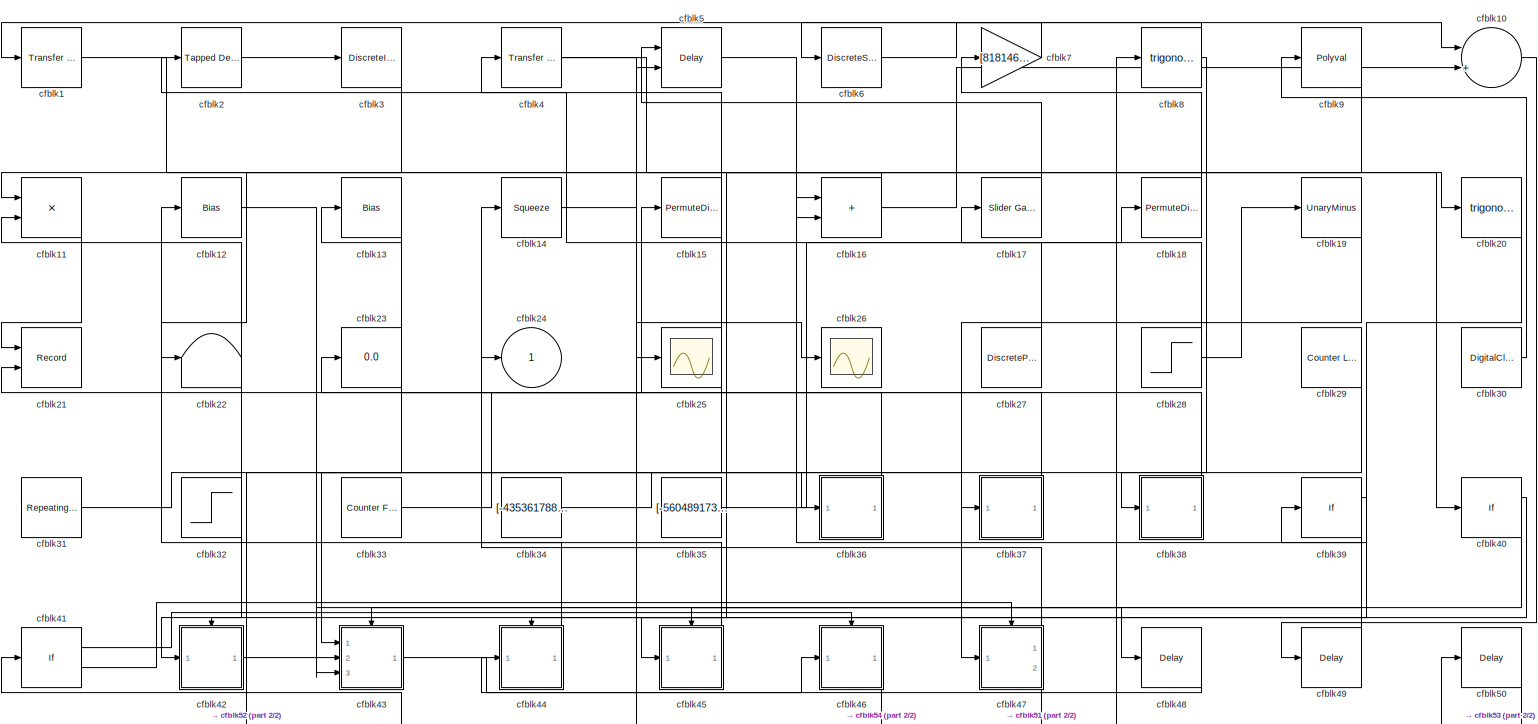
[diagram: root canvas - part 1/2, most of the canvas]
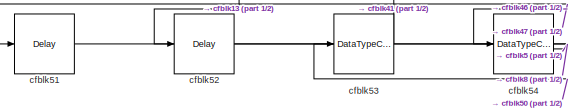
[diagram: root canvas - part 2/2, bottom left region]
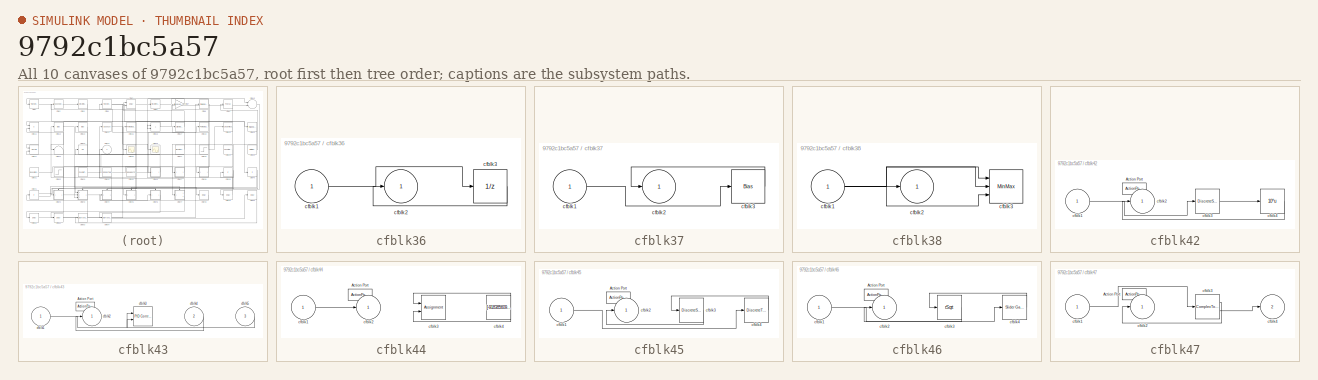
[diagram: thumbnail index - all 10 canvases of the model, root first then tree order]
MODEL slx_9792c1bc5a57
KIND model
CONFIG AbsTol = auto
CONFIG EnableMultiTasking = off
CONFIG FixedStep = auto
CONFIG MaxStep = auto
CONFIG MinStep = auto
CONFIG RelTol = 1e-3
CONFIG SampleTimeConstraint = Unconstrained
CONFIG SolverName = VariableStepAuto
CONFIG StartTime = 0.0
CONFIG StopTime = 10.0
BLOCK [Reference] cfblk1  REF=simulink/Discrete/Transfer Fcn
Lead or Lag
  Ports = [1, 1]
  SourceBlock = simulink/Discrete/Transfer Fcn\nLead or Lag
  SourceProductBaseCode = SL
  SourceType = Lead or Lag Compensator
BLOCK [Sum] cfblk10
  Inputs = |++
  Ports = [2, 1]
BLOCK [Product] cfblk11
  Inputs = **
  Ports = [2, 1]
BLOCK [Bias] cfblk12
  Bias = [-886633856.503143]
  SaturateOnIntegerOverflow = off
BLOCK [Bias] cfblk13
  Bias = [113472994.476104]
  SaturateOnIntegerOverflow = off
BLOCK [Squeeze] cfblk14
BLOCK [PermuteDimensions] cfblk15
BLOCK [Sum] cfblk16
  IconShape = rectangular
  Ports = [2, 1]
BLOCK [Reference] cfblk17  REF=simulink/Math
Operations/Slider
Gain
  Ports = [1, 1]
  SourceBlock = simulink/Math\nOperations/Slider\nGain
  SourceProductBaseCode = SL
  SourceType = Slider Gain
BLOCK [PermuteDimensions] cfblk18
BLOCK [UnaryMinus] cfblk19
BLOCK [Reference] cfblk2  REF=simulink/Discrete/Tapped Delay
  Ports = [1, 1]
  SourceBlock = simulink/Discrete/Tapped Delay
  SourceProductBaseCode = SL
  SourceType = Tapped Delay Line
BLOCK [Trigonometry] cfblk20
  Ports = [1, 1]
BLOCK [Record] cfblk21
  CompatibilityTag = XY
  FileSettingsInternal = {"entries":[{"content":{"excelSettings":{"content":{},"type":"Streamout.ExcelSettings"}},"type":"Streamout.FileSettingStorage","uuid":"81ea7c7e-9fea-4c93-8eb7-3e8b3ac382b8"}],"packageUris":["http://schema.mathworks.com/mf0/streamout_blocks/R2020a"],"version":"1.0"}
  Layout = [1 1]
  Ports = [2]
  SignalsInternal = {"entries":[{"content":{"signals":[{"content":{"blockPath":["sampleModel25/cfblk21"],"channel":[],"dimensions":[1],"domain":"sampleModel25/cfblk21","lineColor":"#a2142f","plots":[1],"port":1,"sid":[""],"signalID":958,"signalName":"cfblk11"},"type":"RecordBlkView.Signal","uuid":"227c1af8-843d-4dbb-83c8-0e7a03416cd8"},{"content":{"blockPath":["sampleModel25/cfblk21"],"channel":[],"dimensions":[1],"d...<+377ch>
  VisualizationBindings = {"xyplotplugin":{"info":[{"series":[{"bindingParametersList":[{"parameter":"X-Axis","signalID":958,"signalName":"cfblk11"},{"parameter":"Y-Axis","signalID":962,"signalName":"cfblk36"}],"seriesID":47306}],"subplotID":1}]}}
BLOCK [Terminator] cfblk22
BLOCK [Display] cfblk23
  Decimation = 1
  Ports = [1]
BLOCK [Outport] cfblk24
BLOCK [Scope] cfblk25
  Floating = off
  NumInputPorts = 1
  Ports = [1]
BLOCK [Scope] cfblk26
  Floating = off
  NumInputPorts = 1
  Ports = [1]
BLOCK [DiscretePulseGenerator] cfblk27
  Amplitude = [-185017419.395854]
  Period = [23344587.836266]
  PhaseDelay = [5.000000]
  Ports = [0, 1]
  PulseType = Time based
  PulseWidth = 5
BLOCK [Step] cfblk28
  After = [174121089.074614]
  Before = [417268794.168945]
  SampleTime = 0
  Time = [16.000000]
BLOCK [Reference] cfblk29  REF=simulink/Sources/Counter
Limited
  Ports = [0, 1]
  SourceBlock = simulink/Sources/Counter\nLimited
  SourceProductBaseCode = SL
  SourceType = Counter Limited
BLOCK [DiscreteIntegrator] cfblk3
  ICPrevOutput = DiscIntNeverNeededParam
  ICPrevScaledInput = DiscIntNeverNeededParam
  InitialConditionSetting = Auto
  Ports = [1, 1]
BLOCK [DigitalClock] cfblk30
BLOCK [Reference] cfblk31  REF=simulink/Sources/Repeating
Sequence
Interpolated
  Ports = [0, 1]
  SourceBlock = simulink/Sources/Repeating\nSequence\nInterpolated
  SourceProductBaseCode = SL
  SourceType = Repeating Sequence Interpolated
BLOCK [Step] cfblk32
  After = [-824289697.887476]
  Before = [-371638337.003964]
  SampleTime = 0
  Time = [7.000000]
BLOCK [Reference] cfblk33  REF=simulink/Sources/Counter
Free-Running
  Ports = [0, 1]
  SourceBlock = simulink/Sources/Counter\nFree-Running
  SourceProductBaseCode = SL
  SourceType = Counter Free-Running
BLOCK [Constant] cfblk34
  SampleTime = 1
  Value = [-435361788.770145]
BLOCK [Constant] cfblk35
  SampleTime = 1
  Value = [-560489173.643593]
BLOCK [SubSystem] cfblk36
  Ports = [1, 1]
  RequestExecContextInheritance = off
BLOCK [Inport] cfblk36/cfblk1
BLOCK [Outport] cfblk36/cfblk2
BLOCK [UnitDelay] cfblk36/cfblk3
  HasFrameUpgradeWarning = on
BLOCK [SubSystem] cfblk37
  Ports = [1, 1]
  RequestExecContextInheritance = off
BLOCK [Inport] cfblk37/cfblk1
BLOCK [Outport] cfblk37/cfblk2
BLOCK [Bias] cfblk37/cfblk3
  Bias = [-343520004.929009]
  SaturateOnIntegerOverflow = off
BLOCK [SubSystem] cfblk38
  Ports = [1, 1]
  RequestExecContextInheritance = off
BLOCK [Inport] cfblk38/cfblk1
BLOCK [Outport] cfblk38/cfblk2
BLOCK [MinMax] cfblk38/cfblk3
  Inputs = 3
  Ports = [3, 1]
BLOCK [If] cfblk39
  IfExpression = u1 >= 0
  Ports = [1, 2]
  SampleTime = 1
BLOCK [Reference] cfblk4  REF=simulink/Discrete/Transfer Fcn
Real Zero
  Ports = [1, 1]
  SourceBlock = simulink/Discrete/Transfer Fcn\nReal Zero
  SourceProductBaseCode = SL
  SourceType = Transfer Fcn Real Zero
BLOCK [If] cfblk40
  IfExpression = u1 >= 0
  Ports = [1, 2]
  SampleTime = 1
BLOCK [If] cfblk41
  IfExpression = u1 >= 0
  Ports = [1, 2]
  SampleTime = 1
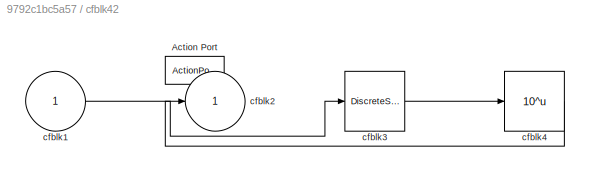
BLOCK [SubSystem] cfblk42
  Ports = [1, 1, 0, 0, 0, 0, 0, 1]
  RequestExecContextInheritance = off
  TreatAsAtomicUnit = on
BLOCK [ActionPort] cfblk42/Action Port
  ActionPortLabel = if(u1 >= 0)
BLOCK [Inport] cfblk42/cfblk1
BLOCK [Outport] cfblk42/cfblk2
BLOCK [DiscreteStateSpace] cfblk42/cfblk3
  SampleTime = -1
BLOCK [Math] cfblk42/cfblk4
  Operator = 10^u
  Ports = [1, 1]
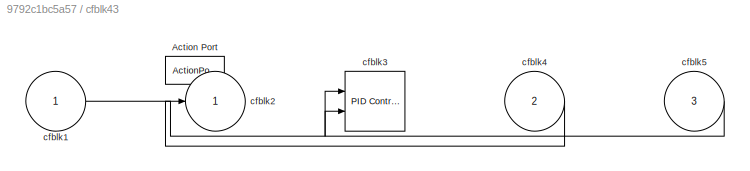
BLOCK [SubSystem] cfblk43
  Ports = [3, 1, 0, 0, 0, 0, 0, 1]
  RequestExecContextInheritance = off
  TreatAsAtomicUnit = on
BLOCK [ActionPort] cfblk43/Action Port
  ActionPortLabel = else
BLOCK [Inport] cfblk43/cfblk1
BLOCK [Outport] cfblk43/cfblk2
BLOCK [Reference] cfblk43/cfblk3  REF=slpidlib/PID Controller (2DOF)
  Ports = [2, 1]
  SourceBlock = slpidlib/PID Controller (2DOF)
  SourceProductBaseCode = SL
  SourceType = PID 2dof
BLOCK [Inport] cfblk43/cfblk4
  Port = 2
BLOCK [Inport] cfblk43/cfblk5
  Port = 3
BLOCK [SubSystem] cfblk44
  Ports = [1, 1, 0, 0, 0, 0, 0, 1]
  RequestExecContextInheritance = off
  TreatAsAtomicUnit = on
BLOCK [ActionPort] cfblk44/Action Port
  ActionPortLabel = if(u1 >= 0)
BLOCK [Inport] cfblk44/cfblk1
BLOCK [Outport] cfblk44/cfblk2
BLOCK [Assignment] cfblk44/cfblk3
  DiagnosticForDimensions = Warning
  IndexOptions = Index vector (dialog)
  Indices = 1
  OutputSizes = 1
  Ports = [2, 1]
BLOCK [Constant] cfblk44/cfblk4
  SampleTime = 1
  Value = [-918385609.478166]
BLOCK [SubSystem] cfblk45
  Ports = [1, 1, 0, 0, 0, 0, 0, 1]
  RequestExecContextInheritance = off
  TreatAsAtomicUnit = on
BLOCK [ActionPort] cfblk45/Action Port
  ActionPortLabel = else
BLOCK [Inport] cfblk45/cfblk1
BLOCK [Outport] cfblk45/cfblk2
BLOCK [DiscreteStateSpace] cfblk45/cfblk3
  SampleTime = -1
BLOCK [DiscreteTransferFcn] cfblk45/cfblk4
  InputPortMap = u0
  Ports = [1, 1]
BLOCK [SubSystem] cfblk46
  Ports = [1, 1, 0, 0, 0, 0, 0, 1]
  RequestExecContextInheritance = off
  TreatAsAtomicUnit = on
BLOCK [ActionPort] cfblk46/Action Port
  ActionPortLabel = if(u1 >= 0)
BLOCK [Inport] cfblk46/cfblk1
BLOCK [Outport] cfblk46/cfblk2
BLOCK [Sqrt] cfblk46/cfblk3
  AlgorithmType = Newton-Raphson
  Operator = rSqrt
BLOCK [Reference] cfblk46/cfblk4  REF=simulink/Math
Operations/Slider
Gain
  Ports = [1, 1]
  SourceBlock = simulink/Math\nOperations/Slider\nGain
  SourceProductBaseCode = SL
  SourceType = Slider Gain
BLOCK [SubSystem] cfblk47
  Ports = [1, 2, 0, 0, 0, 0, 0, 1]
  RequestExecContextInheritance = off
  TreatAsAtomicUnit = on
BLOCK [ActionPort] cfblk47/Action Port
  ActionPortLabel = else
BLOCK [Inport] cfblk47/cfblk1
BLOCK [Outport] cfblk47/cfblk2
BLOCK [ComplexToRealImag] cfblk47/cfblk3
  Ports = [1, 2]
BLOCK [Outport] cfblk47/cfblk4
  Port = 2
BLOCK [Delay] cfblk48
  InputPortMap = u0
  Ports = [1, 1]
  SampleTime = 1
BLOCK [Delay] cfblk49
  InputPortMap = u0
  Ports = [1, 1]
  SampleTime = 1
BLOCK [Delay] cfblk5
  DelayLengthSource = Input port
  InputPortMap = u0,p1
  Ports = [2, 1]
  SampleTime = 1
BLOCK [Delay] cfblk50
  InputPortMap = u0
  Ports = [1, 1]
  SampleTime = 1
BLOCK [Delay] cfblk51
  InputPortMap = u0
  Ports = [1, 1]
  SampleTime = 1
BLOCK [Delay] cfblk52
  InputPortMap = u0
  Ports = [1, 1]
  SampleTime = 1
BLOCK [DataTypeConversion] cfblk53
  RndMeth = Floor
  SaturateOnIntegerOverflow = off
BLOCK [DataTypeConversion] cfblk54
  RndMeth = Floor
  SaturateOnIntegerOverflow = off
BLOCK [DiscreteStateSpace] cfblk6
BLOCK [Gain] cfblk7
  Gain = [818146628.615258]
BLOCK [Trigonometry] cfblk8
  Ports = [1, 1]
BLOCK [Polyval] cfblk9
  Coefs = [ +2.081618890e-019, -1.441693666e-014, +4.719686976e-010, -8.536869453e-006, +1.621573104e-001, -8.087801117e+001 ]
LINE cfblk10:1 -> cfblk49:1
LINE cfblk11:1 -> cfblk21:1
LINE cfblk12:1 -> cfblk48:1
LINE cfblk13:1 -> cfblk52:1
LINE cfblk14:1 -> cfblk26:1
NET cfblk15:1 -> cfblk2:1, cfblk43:2
NET cfblk16:1 -> cfblk10:2, cfblk11:1
LINE cfblk17:1 -> cfblk5:1
LINE cfblk18:1 -> cfblk7:1
LINE cfblk19:1 -> cfblk47:1
LINE cfblk1:1 -> cfblk25:1
LINE cfblk20:1 -> cfblk39:1
LINE cfblk27:1 -> cfblk4:1
NET cfblk28:1 -> cfblk17:1, cfblk19:1
LINE cfblk29:1 -> cfblk43:1
LINE cfblk2:1 -> cfblk3:1
LINE cfblk30:1 -> cfblk9:1
LINE cfblk31:1 -> cfblk37:1
NET cfblk32:1 -> cfblk11:2, cfblk42:1
LINE cfblk33:1 -> cfblk15:1
LINE cfblk34:1 -> cfblk36:1
LINE cfblk35:1 -> cfblk18:1
LINE cfblk36/cfblk1:1 -> cfblk36/cfblk3:1
LINE cfblk36/cfblk3:1 -> cfblk36/cfblk2:1
LINE cfblk36:1 -> cfblk21:2
LINE cfblk37/cfblk1:1 -> cfblk37/cfblk3:1
LINE cfblk37/cfblk3:1 -> cfblk37/cfblk2:1
LINE cfblk37:1 -> cfblk23:1
NET cfblk38/cfblk1:1 -> cfblk38/cfblk2:1, cfblk38/cfblk3:1, cfblk38/cfblk3:2, cfblk38/cfblk3:3
LINE cfblk38:1 -> cfblk13:1
LINE cfblk39:1 -> cfblk42:ifaction
LINE cfblk39:2 -> cfblk43:ifaction
LINE cfblk3:1 -> cfblk22:1
LINE cfblk40:1 -> cfblk44:ifaction
LINE cfblk40:2 -> cfblk45:ifaction
LINE cfblk41:1 -> cfblk46:ifaction
LINE cfblk41:2 -> cfblk47:ifaction
LINE cfblk42/cfblk1:1 -> cfblk42/cfblk3:1
LINE cfblk42/cfblk3:1 -> cfblk42/cfblk4:1
LINE cfblk42/cfblk4:1 -> cfblk42/cfblk2:1
LINE cfblk42:1 -> cfblk43:3
LINE cfblk43/cfblk1:1 -> cfblk43/cfblk3:1
LINE cfblk43/cfblk4:1 -> cfblk43/cfblk2:1
LINE cfblk43/cfblk5:1 -> cfblk43/cfblk3:2
LINE cfblk43:1 -> cfblk46:1
LINE cfblk44/cfblk1:1 -> cfblk44/cfblk2:1
NET cfblk44/cfblk4:1 -> cfblk44/cfblk3:1, cfblk44/cfblk3:2
LINE cfblk44:1 -> cfblk12:1
LINE cfblk45/cfblk1:1 -> cfblk45/cfblk4:1
LINE cfblk45/cfblk3:1 -> cfblk45/cfblk2:1
LINE cfblk45/cfblk4:1 -> cfblk45/cfblk3:1
LINE cfblk45:1 -> cfblk24:1
LINE cfblk46/cfblk1:1 -> cfblk46/cfblk4:1
LINE cfblk46/cfblk3:1 -> cfblk46/cfblk2:1
LINE cfblk46/cfblk4:1 -> cfblk46/cfblk3:1
LINE cfblk46:1 -> cfblk54:1
LINE cfblk47/cfblk1:1 -> cfblk47/cfblk3:1
LINE cfblk47/cfblk3:1 -> cfblk47/cfblk2:1
LINE cfblk47/cfblk3:2 -> cfblk47/cfblk4:1
LINE cfblk47:1 -> cfblk14:1
LINE cfblk47:2 -> cfblk51:1
LINE cfblk48:1 -> cfblk44:1
LINE cfblk49:1 -> cfblk16:1
NET cfblk4:1 -> cfblk16:2, cfblk40:1
LINE cfblk50:1 -> cfblk53:1
LINE cfblk51:1 -> cfblk5:2
LINE cfblk52:1 -> cfblk8:1
LINE cfblk53:1 -> cfblk41:1
LINE cfblk54:1 -> cfblk50:1
LINE cfblk5:1 -> cfblk20:1
LINE cfblk6:1 -> cfblk10:1
LINE cfblk7:1 -> cfblk6:1
NET cfblk8:1 -> cfblk1:1, cfblk38:1
LINE cfblk9:1 -> cfblk45:1
note: NET lines group one-source signal fan-out (src -> all destinations, sorted); 1:1 wires keep LINE
